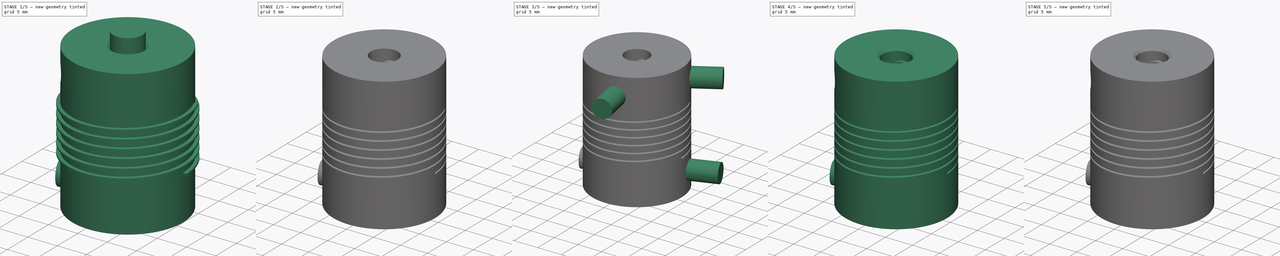
[diagram: build sequence overview — one tinted view per stage of 5, left to right]
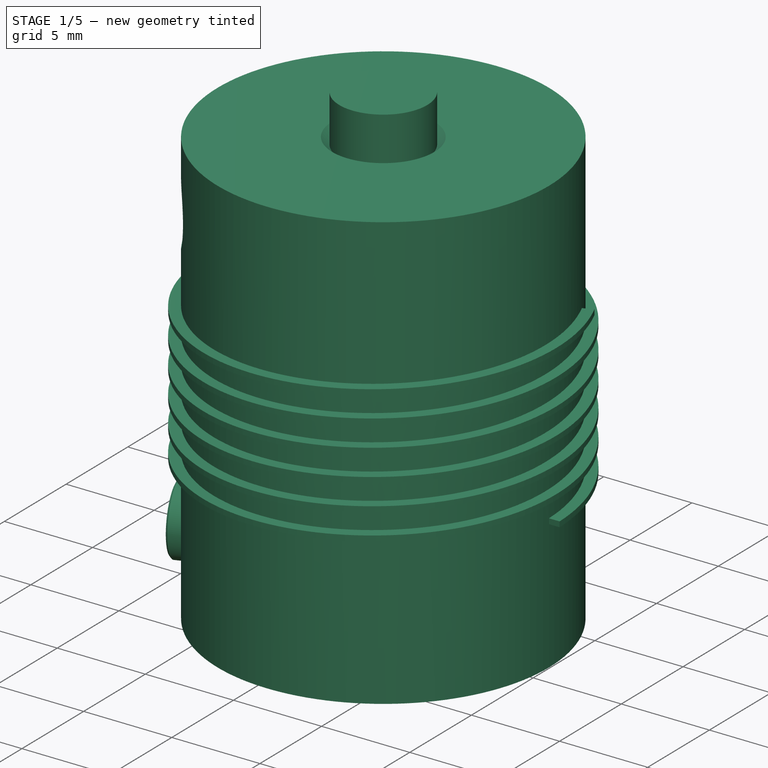
[diagram: stage 1 of 5 — iso view after this stage's code; geometry added in this stage tinted green]
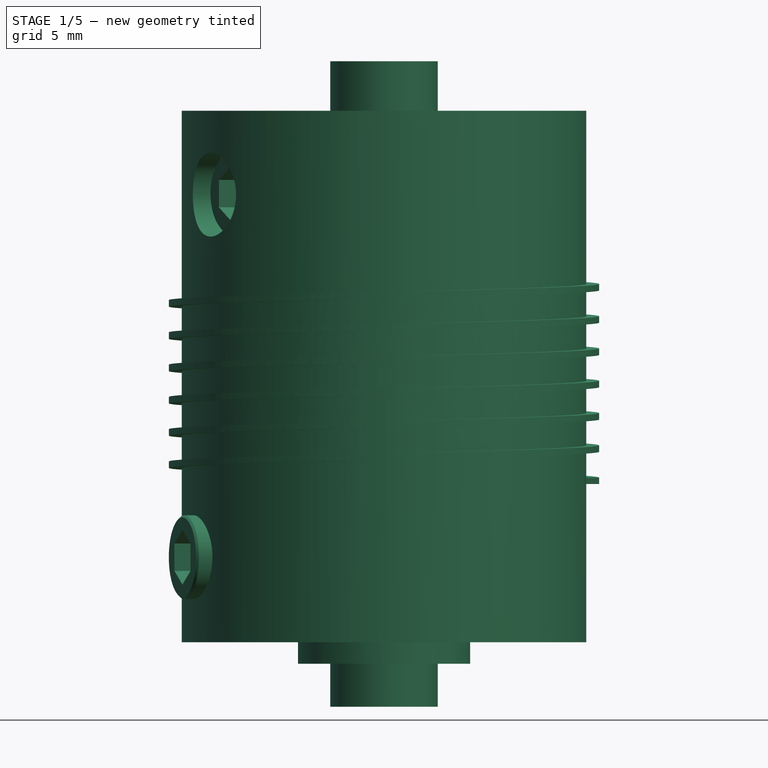
[diagram: stage 1 of 5 — front view after this stage's code; geometry added in this stage tinted green]
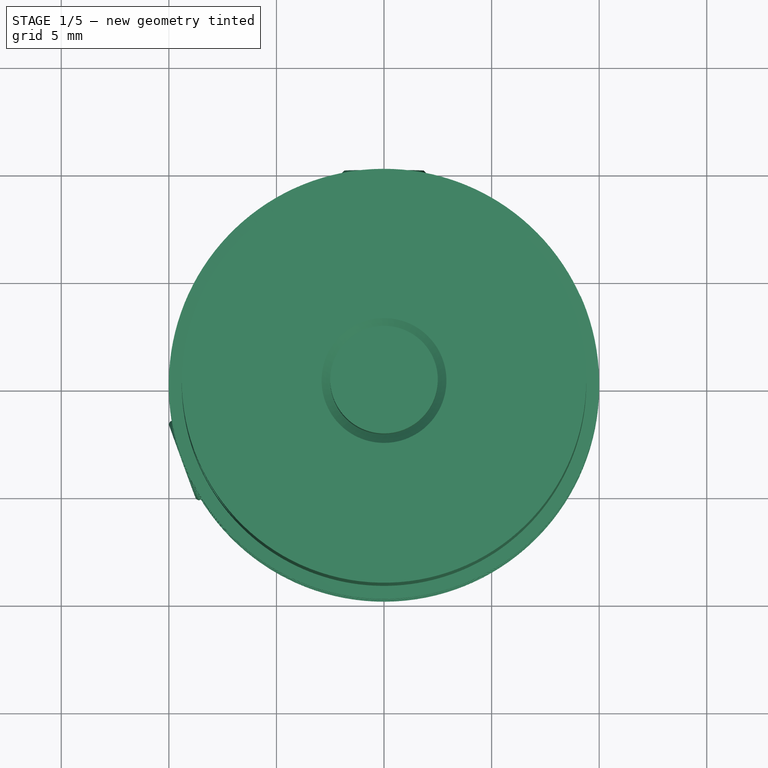
[diagram: stage 1 of 5 — top view after this stage's code; geometry added in this stage tinted green]
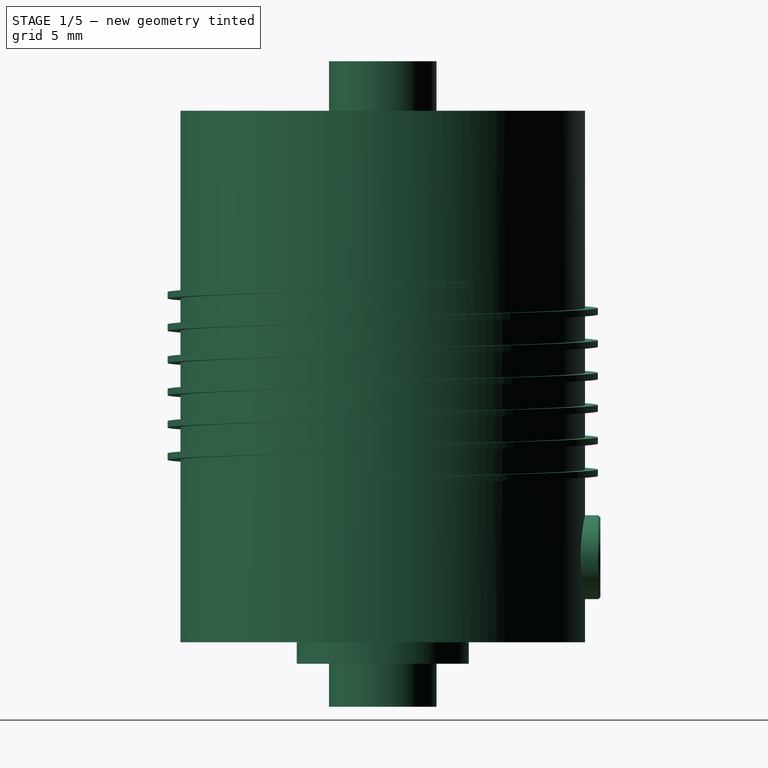
[diagram: stage 1 of 5 — right view after this stage's code; geometry added in this stage tinted green]
FCSTD DOCUMENT  (FreeCAD 0.16R5312 (Git))
Label: beam-coupling-5mm-8mm
License: CC-BY 3.0
LicenseURL: http://creativecommons.org/licenses/by/3.0/
objects: Part::Cylinder×8, Part::Feature×5, Part::Cut×4, Sketcher::SketchObject×2, PartDesign::Chamfer×2, App::DocumentObjectGroup×2, Part::Helix×1, Part::Sweep×1, Part::MultiFuse×1, PartDesign::Pocket×1, Part::Chamfer×1, Part::Compound×1
note: 28 computed .brp shape members not serialized (recipe doc carries the construction recipe); baked Part::Feature solids carry a one-line shape summary decoded from their .brp

FEATURE [Part::Helix] Helix  label="thread-path"
  Angle = 0
  Height = 9.1
  LocalCoord = 0
  Pitch = 1.5
  Radius = 10
  Style = 1
FEATURE [Sketcher::SketchObject] Sketch  label="thread-section-sketch"
  Placement = pos=(0,0,0) rot=(1,0,0;1.5708rad)
  sketch-geometry (4):
    g0: LineSegment StartX=0 StartY=0 StartZ=0 EndX=10 EndY=0 EndZ=0
    g1: LineSegment StartX=10 StartY=0 StartZ=0 EndX=10 EndY=0.3 EndZ=0
    g2: LineSegment StartX=10 StartY=0.3 StartZ=0 EndX=0 EndY=0.3 EndZ=0
    g3: LineSegment StartX=0 StartY=0.3 StartZ=0 EndX=0 EndY=0 EndZ=0
  constraints (11):
    c: Coincident(g0,g1)
    c: Coincident(g1,g2)
    c: Coincident(g2,g3)
    c: Coincident(g3,g0)
    c: Horizontal(g0)
    c: Horizontal(g2)
    c: Vertical(g1)
    c: Vertical(g3)
    c: Coincident(g0,g-1)
    c: DistanceX(g2) = -10
    c: DistanceY(g1) = 0.3
FEATURE [Part::Sweep] Sweep  label="flexible-part-male"
  Frenet = true
  Placement = pos=(0,0,7.35) rot=(0,0,1;0rad)
  Sections = -> [Sketch]
  Solid = true
  Spine = -> Helix [Edge1]
  Transition = 1
FEATURE [Part::Cylinder] Cylinder001  label="vertical-5mm-drill-cylinder"
  Angle = 360
  Height = 30
  Placement = pos=(0,0,-3) rot=(0,0,1;0rad)
  Radius = 2.5
FEATURE [App::DocumentObjectGroup] Group  label="setscrew-src"
  Group = -> [Cylinder006,Pocket,Chamfer001,Chamfer002]
FEATURE [Part::Feature] Chamfer004  label="setscrew-bottom-1"
  Placement = pos=(0,3.9163,3.95) rot=(-1,0,0;1.5708rad)
  shape: bbox 3.9 x 6.2 x 3.9 mm, 12 faces (baked)
FEATURE [Part::Feature] Chamfer005  label="setscrew-bottom-002"
  Placement = pos=(-3.54198,-1.28918,3.95) rot=(0.443713,0.633687,-0.633687;3.97682rad)
  shape: bbox 7.092 x 5.717 x 3.9 mm, 12 faces (baked)
FEATURE [Part::Feature] Chamfer006  label="setscrew-top-1"
  Placement = pos=(-0.399844,2.05702,20.85) rot=(-0.990855,-0.095409,0.095409;1.57998rad)
  shape: bbox 4.973 x 6.792 x 3.9 mm, 12 faces (baked)
FEATURE [Part::Feature] Chamfer007  label="setscrew-top-2"
  Placement = pos=(-1.79621,-1.07927,20.85) rot=(-0.37144,-0.656518,0.656518;2.4303rad)
  shape: bbox 7.22 x 6.433 x 3.9 mm, 12 faces (baked)
FEATURE [Part::Cylinder] Cylinder007  label="vertical-drill-8mm-cylinder"
  Angle = 360
  Height = 17.6
  Placement = pos=(0,0,-1) rot=(0,0,1;0rad)
  Radius = 4
FEATURE [App::DocumentObjectGroup] Group001  label="coupling-src"
  Group = -> [Chamfer003,Helix]
FEATURE [Part::Feature] Chamfer003001  label="coupling-final"
  shape: bbox 28.44 x 28.71 x 24.7 mm, 28 faces (baked)
FEATURE [Part::Compound] Compound  label="coupling-compound"
  Links = -> [Chamfer004,Chamfer005,Chamfer006,Chamfer007,Chamfer003001]
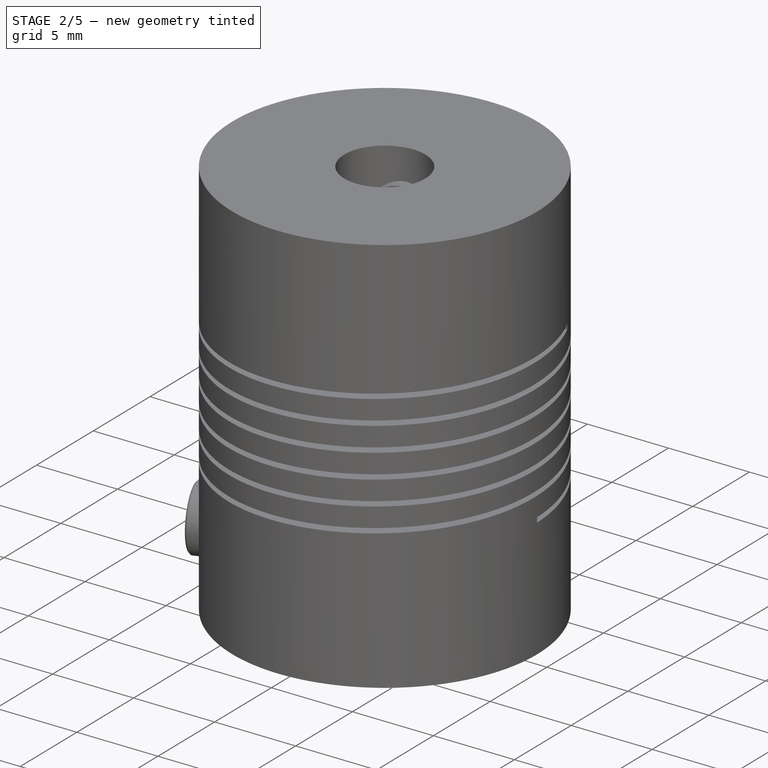
[diagram: stage 2 of 5 — iso view after this stage's code; geometry added in this stage tinted green]
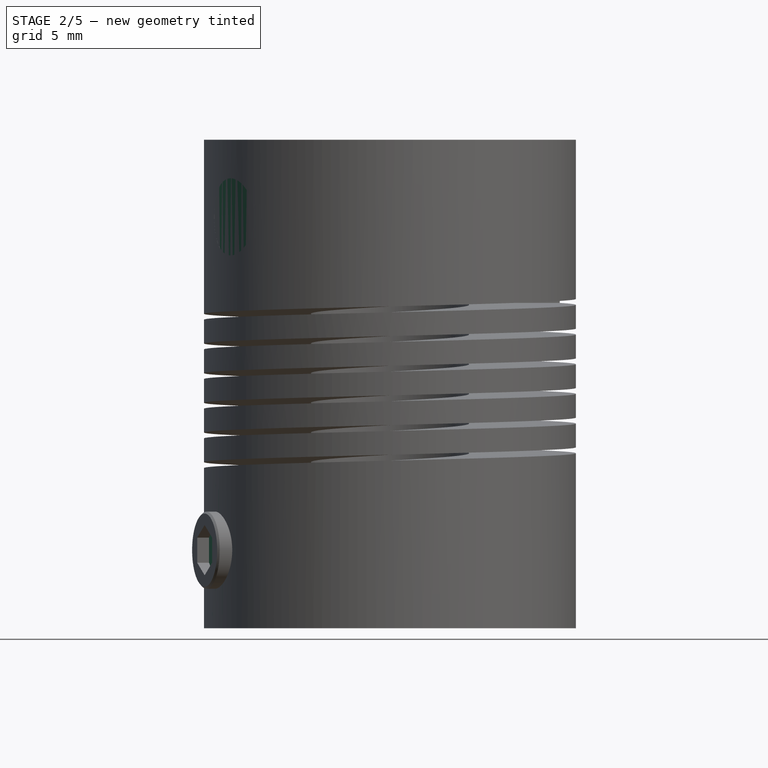
[diagram: stage 2 of 5 — front view after this stage's code; geometry added in this stage tinted green]
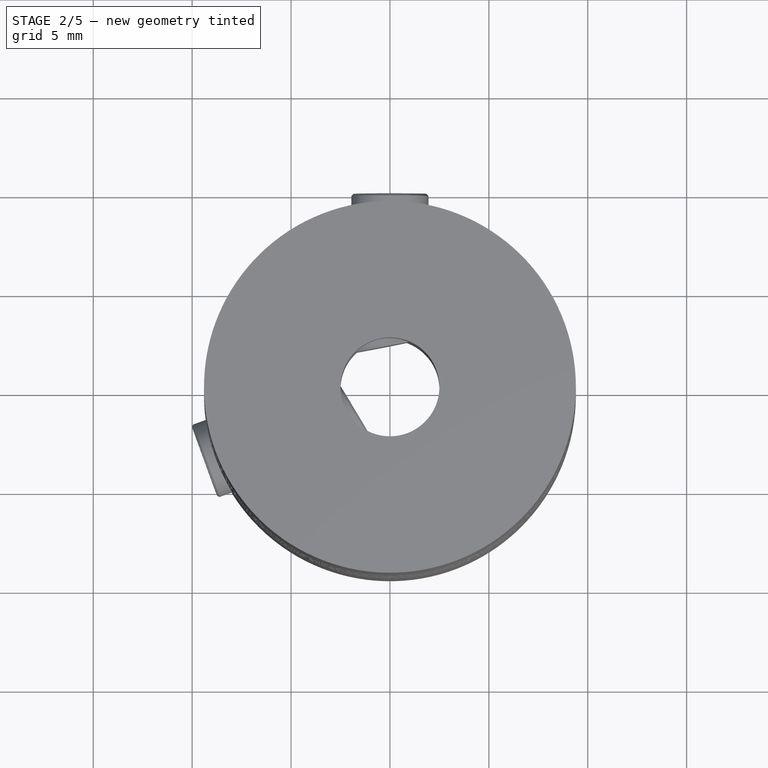
[diagram: stage 2 of 5 — top view after this stage's code; geometry added in this stage tinted green]
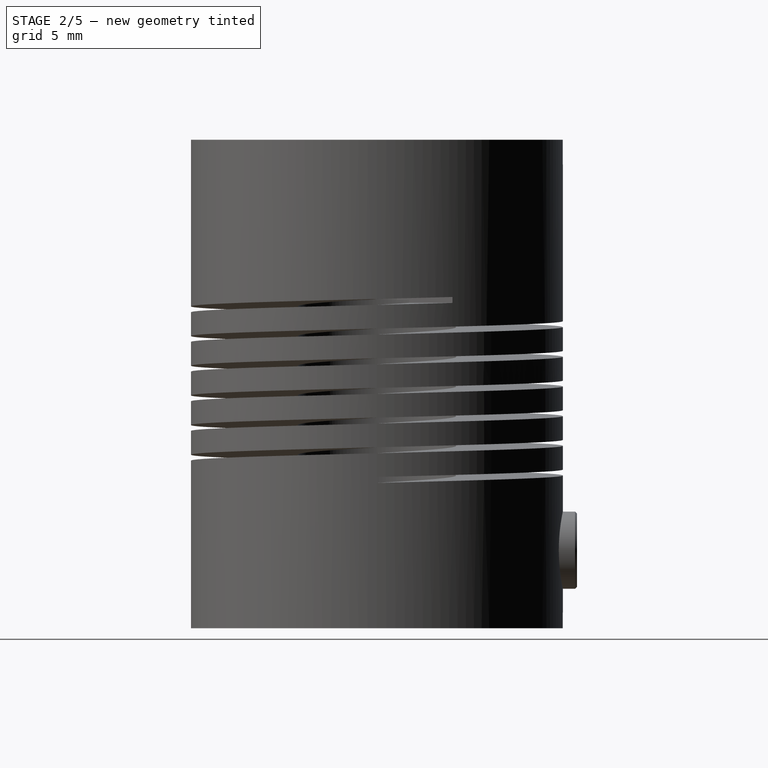
[diagram: stage 2 of 5 — right view after this stage's code; geometry added in this stage tinted green]
FEATURE [Part::Cylinder] Cylinder  label="main-body"
  Angle = 360
  Height = 24.7
  Radius = 9.4
FEATURE [Part::Cut] Cut  label="main-body-flexible-part"
  Base = -> Cylinder
  Tool = -> Sweep
FEATURE [Part::Cut] Cut001  label="vertical-5mm-drill"
  Base = -> Cut
  Tool = -> Cylinder001
FEATURE [Part::Cut] Cut003  label="vertical-8mm-drill"
  Base = -> Cut001
  Tool = -> Cylinder007
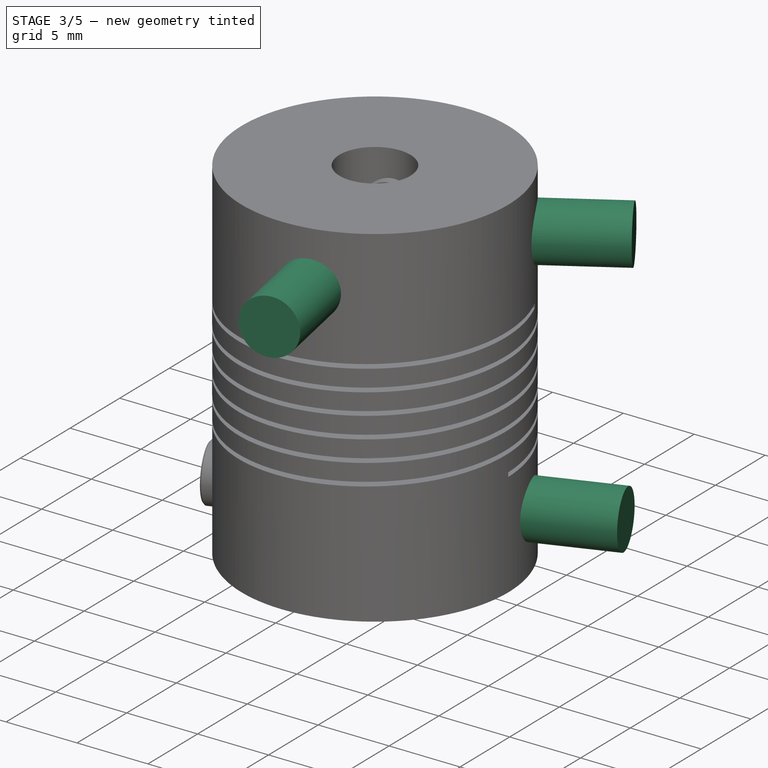
[diagram: stage 3 of 5 — iso view after this stage's code; geometry added in this stage tinted green]
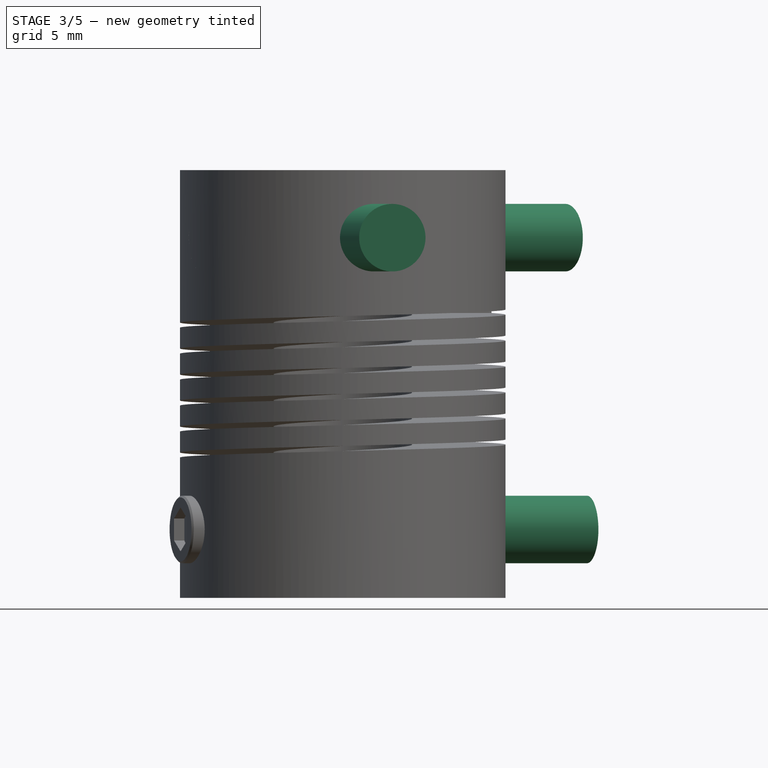
[diagram: stage 3 of 5 — front view after this stage's code; geometry added in this stage tinted green]
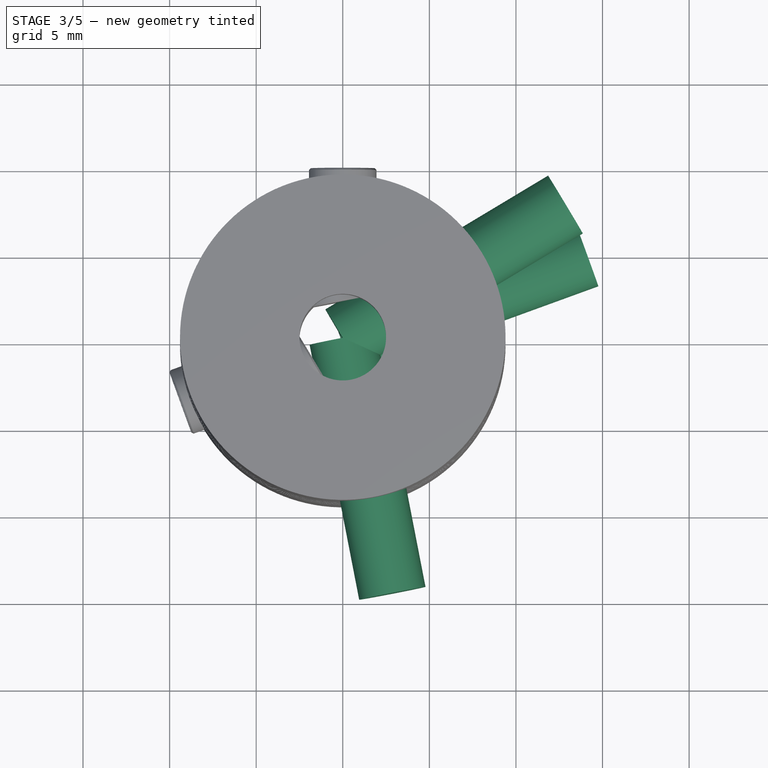
[diagram: stage 3 of 5 — top view after this stage's code; geometry added in this stage tinted green]
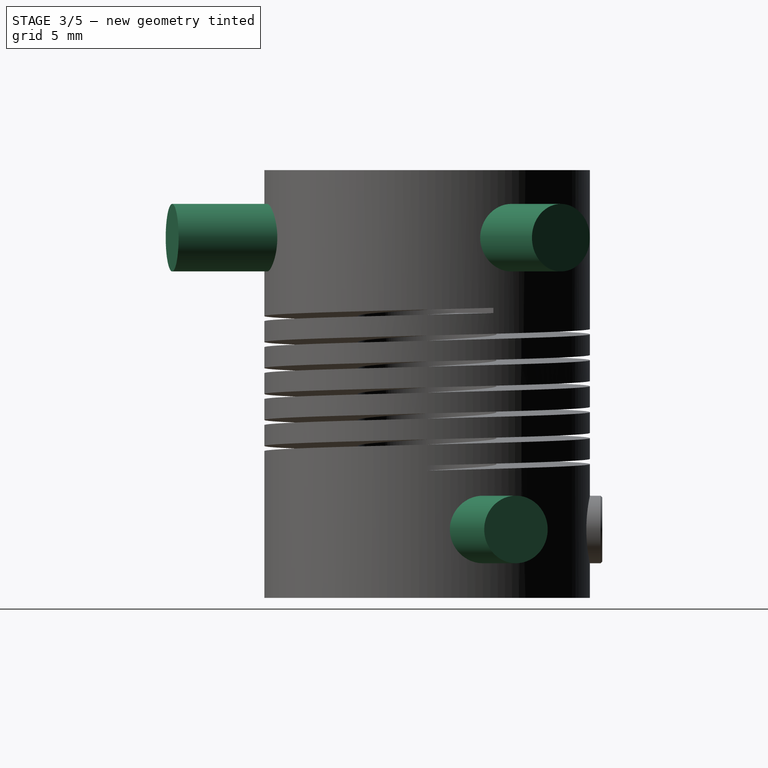
[diagram: stage 3 of 5 — right view after this stage's code; geometry added in this stage tinted green]
FEATURE [Part::Cylinder] Cylinder003  label="bottom-setscrew-2-cylinder"
  Angle = 360
  Height = 15
  Placement = pos=(0,0,3.95) rot=(0.443713,0.633687,0.633687;2.30637rad)
  Radius = 1.95
FEATURE [Part::Cylinder] Cylinder004  label="top-setscrew-1-cylinder001"
  Angle = 360
  Height = 15
  Placement = pos=(0,0,20.8) rot=(0.990855,0.095409,0.095409;1.57998rad)
  Radius = 1.95
FEATURE [Part::Cylinder] Cylinder005  label="top-setscrew-2-cylinder001"
  Angle = 360
  Height = 15
  Placement = pos=(0,0,20.8) rot=(0.37144,0.656518,0.656518;2.4303rad)
  Radius = 1.95
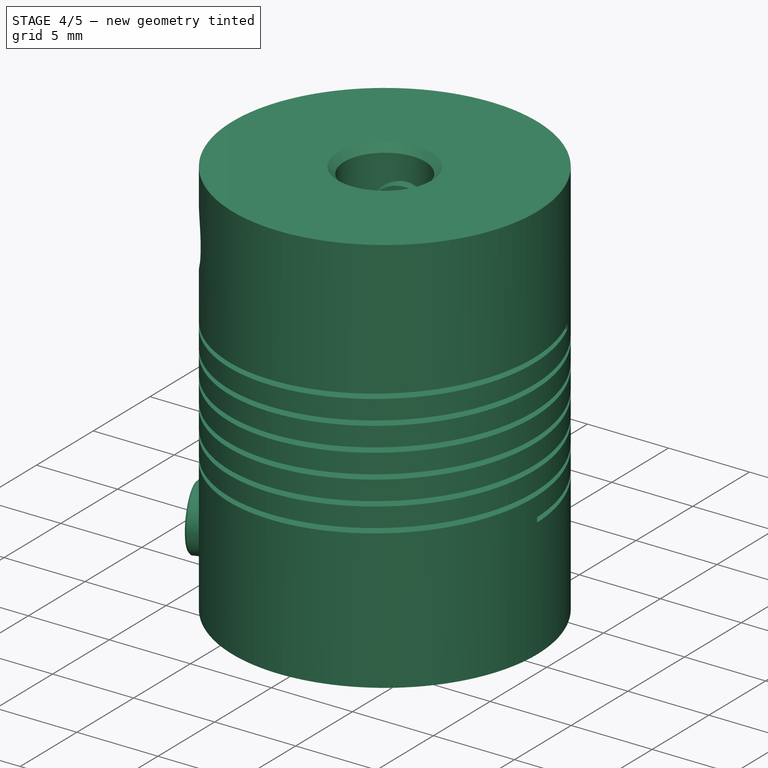
[diagram: stage 4 of 5 — iso view after this stage's code; geometry added in this stage tinted green]
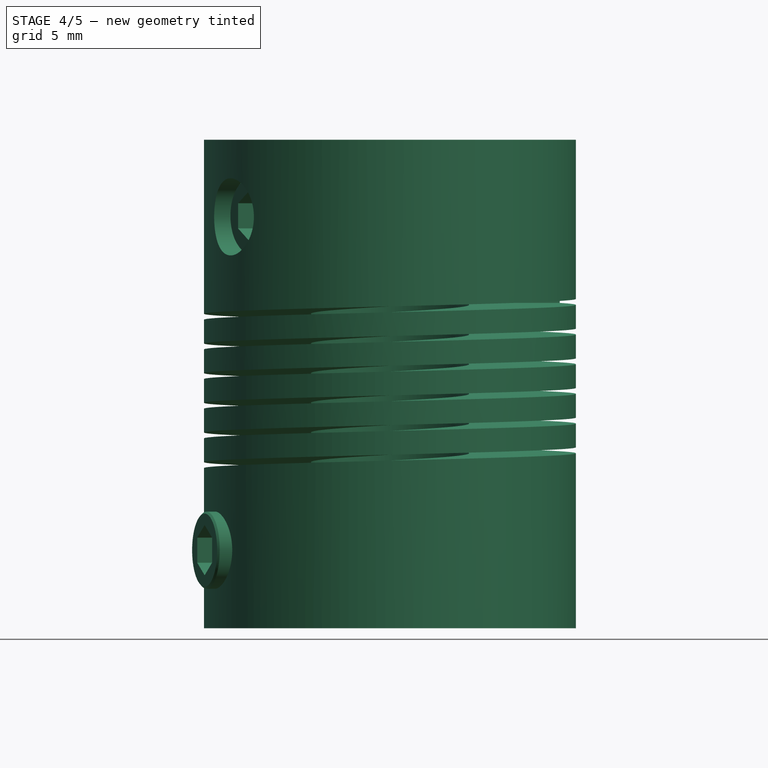
[diagram: stage 4 of 5 — front view after this stage's code; geometry added in this stage tinted green]
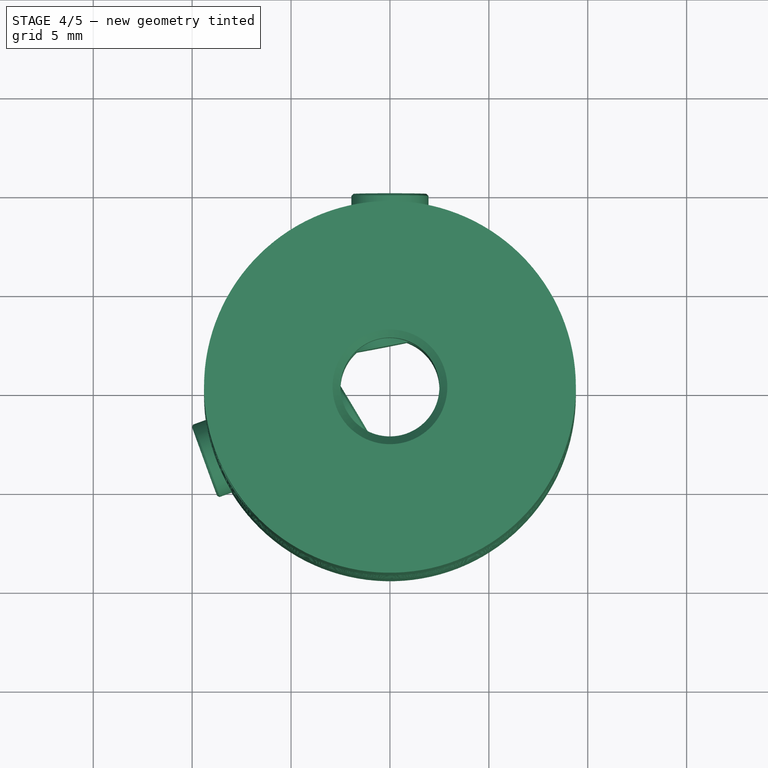
[diagram: stage 4 of 5 — top view after this stage's code; geometry added in this stage tinted green]
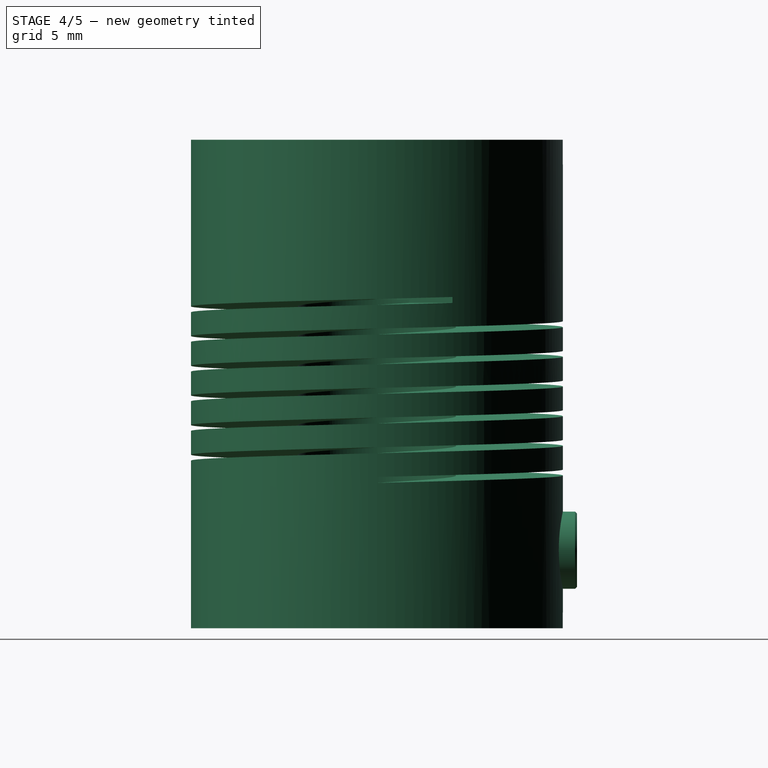
[diagram: stage 4 of 5 — right view after this stage's code; geometry added in this stage tinted green]
FEATURE [Part::Cylinder] Cylinder002  label="bottom-setscrew-1-cylinder"
  Angle = 360
  Height = 15
  Placement = pos=(0,0,3.95) rot=(1,0,0;1.5708rad)
  Radius = 1.95
FEATURE [Part::MultiFuse] Fusion  label="setscrew-cylinders"
  Placement = pos=(0,0,0) rot=(0,0,1;3.14159rad)
  Shapes = -> [Cylinder002,Cylinder005,Cylinder004,Cylinder003]
FEATURE [Part::Cut] Cut004  label="horizontal-drills"
  Base = -> Cut003
  Tool = -> Fusion
FEATURE [Part::Chamfer] Chamfer003
  Base = -> Cut004
  Edges = 2 edges r=0.4: [Edge47,Edge70]
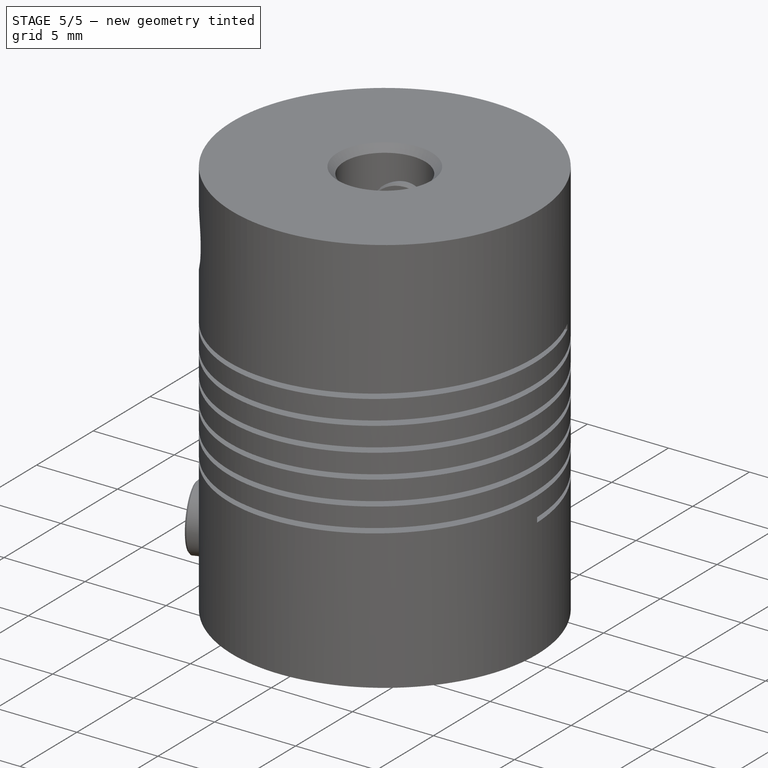
[diagram: stage 5 of 5 — iso view after this stage's code; geometry added in this stage tinted green]
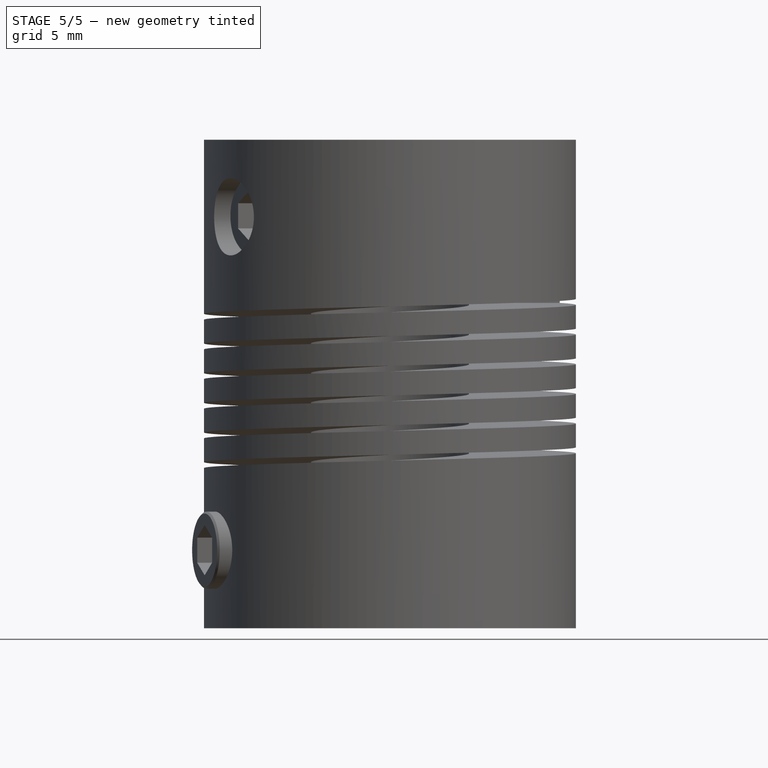
[diagram: stage 5 of 5 — front view after this stage's code; geometry added in this stage tinted green]
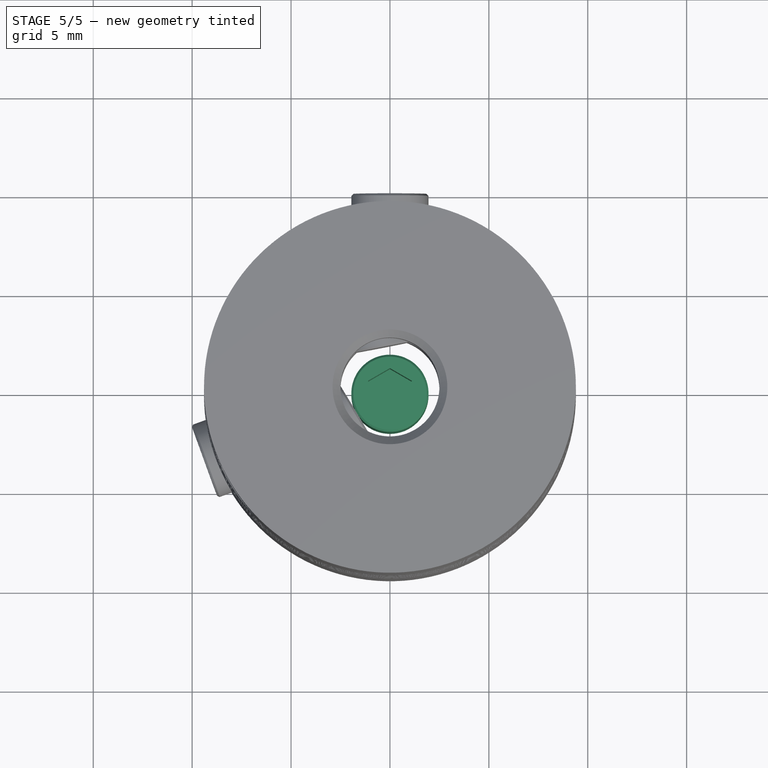
[diagram: stage 5 of 5 — top view after this stage's code; geometry added in this stage tinted green]
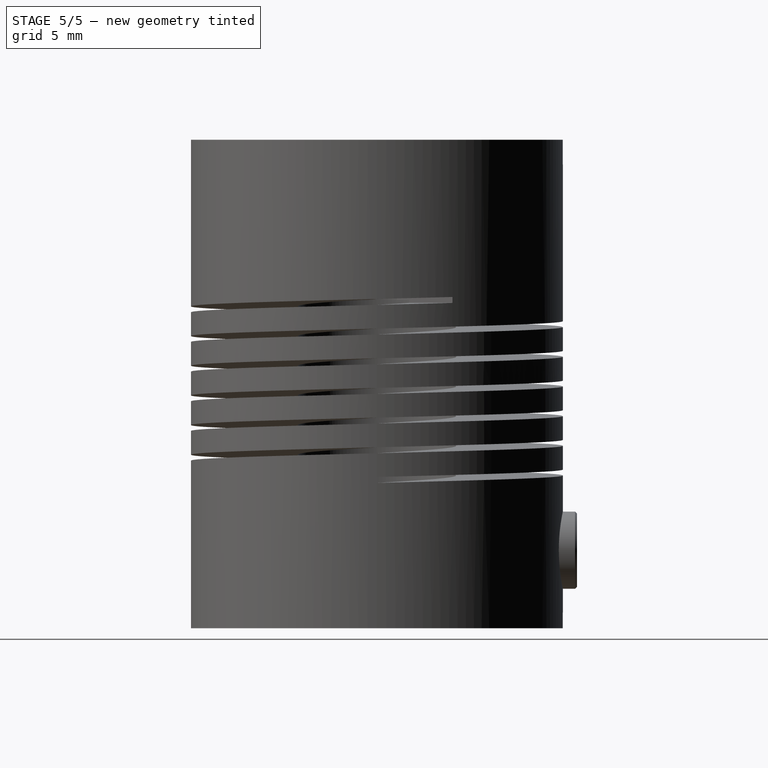
[diagram: stage 5 of 5 — right view after this stage's code; geometry added in this stage tinted green]
FEATURE [Part::Cylinder] Cylinder006  label="setscrew-body"
  Angle = 360
  Height = 6.2
  Radius = 1.95
FEATURE [Sketcher::SketchObject] Sketch001  label="hexa-sketch"
  Placement = pos=(0,0,6.2) rot=(0,0,1;0rad)
  Support = -> Cylinder006 [Face2]
  sketch-geometry (8):
    g0: LineSegment StartX=-1.1 StartY=-0.635085 StartZ=0 EndX=-1.1 EndY=0.635085 EndZ=0
    g1: LineSegment StartX=-1.1 StartY=0.635085 StartZ=0 EndX=0 EndY=1.27017 EndZ=0
    g2: LineSegment [constr] StartX=-1.1 StartY=0.635085 StartZ=0 EndX=0 EndY=0 EndZ=0
    g3: LineSegment [constr] StartX=0 StartY=1.27017 StartZ=0 EndX=0 EndY=0 EndZ=0
    g4: LineSegment StartX=-1.1 StartY=-0.635085 StartZ=0 EndX=0 EndY=-1.27017 EndZ=0
    g5: LineSegment StartX=0 StartY=-1.27017 StartZ=0 EndX=1.1 EndY=-0.635085 EndZ=0
    g6: LineSegment StartX=1.1 StartY=-0.635085 StartZ=0 EndX=1.1 EndY=0.635085 EndZ=0
    g7: LineSegment StartX=1.1 StartY=0.635085 StartZ=0 EndX=0 EndY=1.27017 EndZ=0
  constraints (21):
    c: Vertical(g0)
    c: Coincident(g0,g1)
    c: Symmetric(g0,g0,g-1)
    c: Coincident(g2,g-1)
    c: Coincident(g2,g0)
    c: Angle(g-2,g2) = 1.0472
    c: Vertical(g3)
    c: Coincident(g3,g-1)
    c: Coincident(g3,g1)
    c: Equal(g3,g2)
    c: Coincident(g0,g4)
    c: PointOnObject(g4,g-2)
    c: Coincident(g4,g5)
    c: Coincident(g5,g6)
    c: Vertical(g6)
    c: Coincident(g6,g7)
    c: Coincident(g7,g1)
    c: Symmetric(g5,g6,g-1)
    c: Symmetric(g0,g6,g-2)
    c: Symmetric(g4,g1,g-1)
    c: DistanceX(g0,g6) = 2.2
FEATURE [PartDesign::Pocket] Pocket  label="hexa"
  Length = 3.2
  Sketch = -> Sketch001
  Type = 0
FEATURE [PartDesign::Chamfer] Chamfer001
  Base = -> Pocket [Edge3]
  Size = 0.1
FEATURE [PartDesign::Chamfer] Chamfer002
  Base = -> Chamfer001 [Edge3]
  Size = 0.1
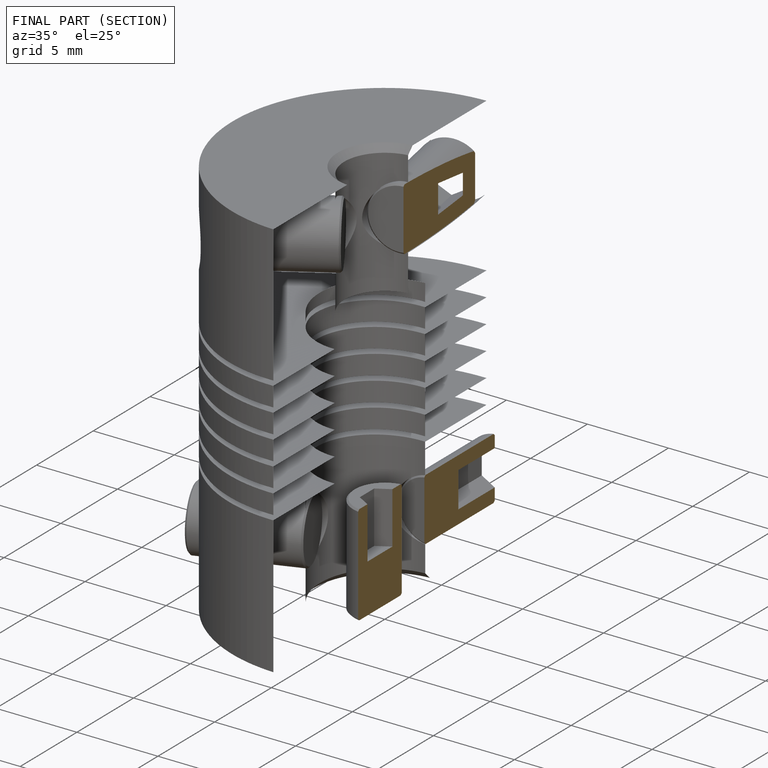
[diagram: finished part — half-section view (interior)]
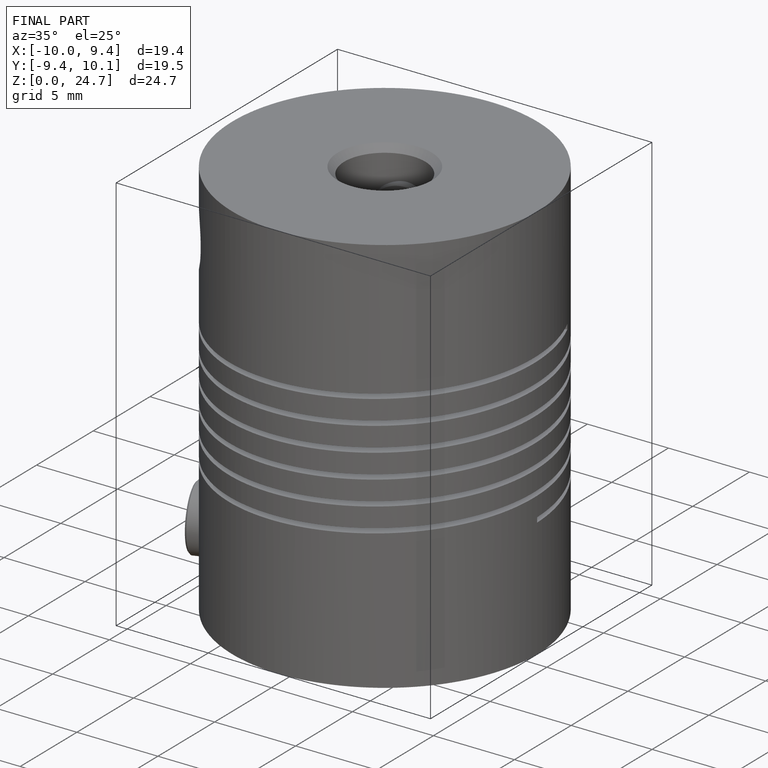
[diagram: finished part — iso view with bounding-box wireframe]
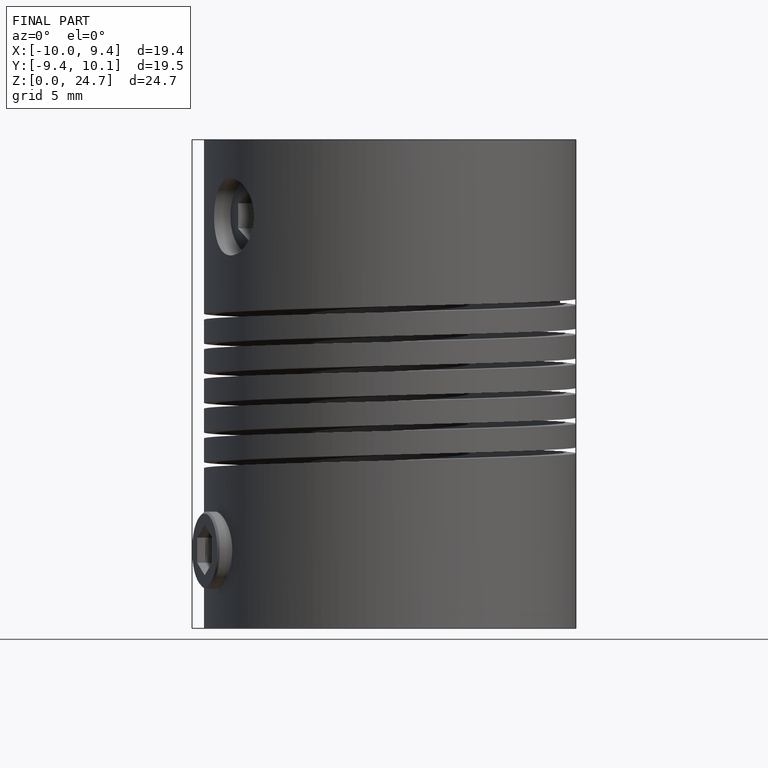
[diagram: finished part — front view with bounding-box wireframe]
